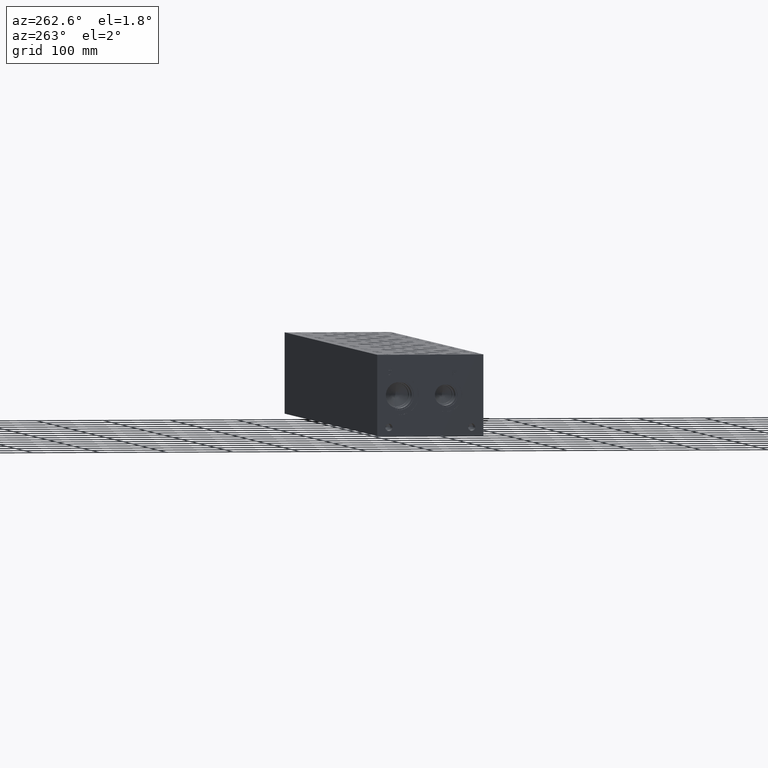
[diagram: clean part render]
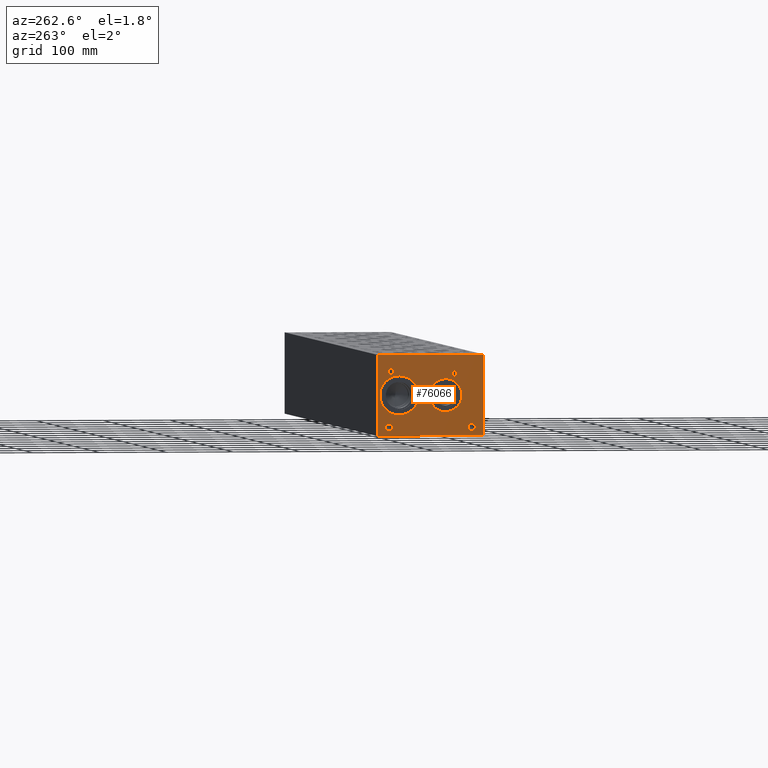
[diagram: same view with one face highlighted and labeled with its STEP entity id]
A machine part, auxiliary view. The second image highlights one B-rep face of the part: STEP entity #76066.
In plain terms, the highlighted planar face has unit normal (-1, 0, 0).
Its self-contained STEP definition (entity closure, byte-faithful):
#1441=CARTESIAN_POINT('',(0.0,141.83874586702157,97.673703319481575));
#1442=VERTEX_POINT('',#1441);
#1449=CARTESIAN_POINT('',(0.0,141.83359999999999,97.673703319481575));
#1450=VERTEX_POINT('',#1449);
#1451=CARTESIAN_POINT('',(0.0,141.83360000000002,97.673703319481589));
#1452=DIRECTION('',(0.0,1.0,0.0));
#1453=VECTOR('',#1452,0.005145867021582);
#1454=LINE('',#1451,#1453);
#1455=EDGE_CURVE('',#1450,#1442,#1454,.T.);
#1510=CARTESIAN_POINT('',(0.0,141.83359999999999,98.4249999046326));
#1511=VERTEX_POINT('',#1510);
#1518=CARTESIAN_POINT('',(0.0,141.83874586702157,98.4249999046326));
#1519=VERTEX_POINT('',#1518);
#1520=CARTESIAN_POINT('',(0.0,141.83874586702157,98.424999904632614));
#1521=DIRECTION('',(0.0,-1.0,0.0));
#1522=VECTOR('',#1521,0.005145867021582);
#1523=LINE('',#1520,#1522);
#1524=EDGE_CURVE('',#1519,#1511,#1523,.T.);
#1549=CARTESIAN_POINT('',(0.0,141.8387458670216,97.673703319481575));
#1550=DIRECTION('',(0.0,0.0,1.0));
#1551=VECTOR('',#1550,0.751296585151024);
#1552=LINE('',#1549,#1551);
#1553=EDGE_CURVE('',#1442,#1519,#1552,.T.);
#1641=CARTESIAN_POINT('',(0.0,141.83359999999999,90.646250000000009));
#1642=VERTEX_POINT('',#1641);
#1643=CARTESIAN_POINT('',(0.0,141.83359999999999,90.646250000000009));
#1644=DIRECTION('',(0.0,0.0,1.0));
#1645=VECTOR('',#1644,7.027453319481566);
#1646=LINE('',#1643,#1645);
#1647=EDGE_CURVE('',#1642,#1450,#1646,.T.);
#1664=CARTESIAN_POINT('',(0.0,134.7216,100.17125));
#1665=VERTEX_POINT('',#1664);
#1666=CARTESIAN_POINT('',(0.0,134.7216,90.646250000000009));
#1667=VERTEX_POINT('',#1666);
#1668=CARTESIAN_POINT('',(0.0,134.72160000000002,100.17125));
#1669=DIRECTION('',(0.0,0.0,-1.0));
#1670=VECTOR('',#1669,9.524999999999992);
#1671=LINE('',#1668,#1670);
#1672=EDGE_CURVE('',#1665,#1667,#1671,.T.);
#1695=CARTESIAN_POINT('',(0.0,141.83359999999999,100.17125));
#1696=VERTEX_POINT('',#1695);
#1697=CARTESIAN_POINT('',(0.0,141.83359999999999,100.17125));
#1698=DIRECTION('',(0.0,-1.0,0.0));
#1699=VECTOR('',#1698,7.111999999999995);
#1700=LINE('',#1697,#1699);
#1701=EDGE_CURVE('',#1696,#1665,#1700,.T.);
#1722=CARTESIAN_POINT('',(0.0,141.83359999999999,98.4249999046326));
#1723=DIRECTION('',(0.0,0.0,1.0));
#1724=VECTOR('',#1723,1.746250095367401);
#1725=LINE('',#1722,#1724);
#1726=EDGE_CURVE('',#1511,#1696,#1725,.T.);
#1736=CARTESIAN_POINT('',(0.0,134.7216,90.646250000000009));
#1737=DIRECTION('',(0.0,1.0,0.0));
#1738=VECTOR('',#1737,7.111999999999995);
#1739=LINE('',#1736,#1738);
#1740=EDGE_CURVE('',#1667,#1642,#1739,.T.);
#2398=CARTESIAN_POINT('',(0.0,39.7256,97.123250000000013));
#2399=VERTEX_POINT('',#2398);
#2400=CARTESIAN_POINT('',(0.0,39.7256,87.598250000000007));
#2401=VERTEX_POINT('',#2400);
#2402=CARTESIAN_POINT('',(0.0,39.725600000000007,97.123250000000013));
#2403=DIRECTION('',(0.0,0.0,-1.0));
#2404=VECTOR('',#2403,9.525000000000006);
#2405=LINE('',#2402,#2404);
#2406=EDGE_CURVE('',#2399,#2401,#2405,.T.);
#2429=CARTESIAN_POINT('',(0.0,46.837600000000002,97.123250000000013));
#2430=VERTEX_POINT('',#2429);
#2431=CARTESIAN_POINT('',(0.0,46.837600000000009,97.123250000000013));
#2432=DIRECTION('',(0.0,-1.0,0.0));
#2433=VECTOR('',#2432,7.112000000000009);
#2434=LINE('',#2431,#2433);
#2435=EDGE_CURVE('',#2430,#2399,#2434,.T.);
#2453=CARTESIAN_POINT('',(0.0,46.837600000000002,87.598250000000007));
#2454=VERTEX_POINT('',#2453);
#2455=CARTESIAN_POINT('',(0.0,46.837599999999995,87.598250000000007));
#2456=DIRECTION('',(0.0,0.0,1.0));
#2457=VECTOR('',#2456,9.525000000000006);
#2458=LINE('',#2455,#2457);
#2459=EDGE_CURVE('',#2454,#2430,#2458,.T.);
#2477=CARTESIAN_POINT('',(0.0,39.7256,87.598250000000007));
#2478=DIRECTION('',(0.0,1.0,0.0));
#2479=VECTOR('',#2478,7.112000000000002);
#2480=LINE('',#2477,#2479);
#2481=EDGE_CURVE('',#2401,#2454,#2480,.T.);
#2903=CARTESIAN_POINT('',(0.0,0.0,0.0));
#2904=VERTEX_POINT('',#2903);
#2921=CARTESIAN_POINT('',(0.0,0.0,120.65000000000001));
#2922=VERTEX_POINT('',#2921);
#2929=CARTESIAN_POINT('',(0.0,0.0,0.0));
#2930=DIRECTION('',(0.0,0.0,1.0));
#2931=VECTOR('',#2930,120.65000000000001);
#2932=LINE('',#2929,#2931);
#2933=EDGE_CURVE('',#2904,#2922,#2932,.T.);
#24013=CARTESIAN_POINT('',(0.0,158.75,120.65000000000001));
#24014=VERTEX_POINT('',#24013);
#24021=CARTESIAN_POINT('',(0.0,158.75,120.65000000000001));
#24022=DIRECTION('',(0.0,-1.0,0.0));
#24023=VECTOR('',#24022,158.75);
#24024=LINE('',#24021,#24023);
#24025=EDGE_CURVE('',#24014,#2922,#24024,.T.);
#70071=CARTESIAN_POINT('',(0.0,125.83159999999999,89.306399999999996));
#70072=VERTEX_POINT('',#70071);
#70073=CARTESIAN_POINT('',(0.0,125.83159999999999,60.325000000000003));
#70074=DIRECTION('',(1.0,0.0,0.0));
#70075=DIRECTION('',(0.0,0.0,1.0));
#70076=AXIS2_PLACEMENT_3D('',#70073,#70074,#70075);
#70077=CIRCLE('',#70076,28.981399999999997);
#70078=EDGE_CURVE('',#70072,#70072,#70077,.T.);
#70228=CARTESIAN_POINT('',(0.0,56.48960000000001,84.810600000000008));
#70229=VERTEX_POINT('',#70228);
#70230=CARTESIAN_POINT('',(0.0,56.48960000000001,60.325000000000003));
#70231=DIRECTION('',(1.0,0.0,0.0));
#70232=DIRECTION('',(0.0,0.0,1.0));
#70233=AXIS2_PLACEMENT_3D('',#70230,#70231,#70232);
#70234=CIRCLE('',#70233,24.485600000000005);
#70235=EDGE_CURVE('',#70229,#70229,#70234,.T.);
#70265=CARTESIAN_POINT('',(0.0,141.28749999999999,18.0594));
#70266=VERTEX_POINT('',#70265);
#70267=CARTESIAN_POINT('',(0.0,141.28749999999999,12.699999999999999));
#70268=DIRECTION('',(1.0,0.0,0.0));
#70269=DIRECTION('',(0.0,0.0,1.0));
#70270=AXIS2_PLACEMENT_3D('',#70267,#70268,#70269);
#70271=CIRCLE('',#70270,5.359400000000001);
#70272=EDGE_CURVE('',#70266,#70266,#70271,.T.);
#70302=CARTESIAN_POINT('',(0.0,17.462499999999999,18.0594));
#70303=VERTEX_POINT('',#70302);
#70304=CARTESIAN_POINT('',(0.0,17.462499999999999,12.699999999999999));
#70305=DIRECTION('',(1.0,0.0,0.0));
#70306=DIRECTION('',(0.0,0.0,1.0));
#70307=AXIS2_PLACEMENT_3D('',#70304,#70305,#70306);
#70308=CIRCLE('',#70307,5.359400000000001);
#70309=EDGE_CURVE('',#70303,#70303,#70308,.T.);
#76015=CARTESIAN_POINT('',(0.0,158.75,0.0));
#76016=DIRECTION('',(-1.0,0.0,0.0));
#76017=DIRECTION('',(0.0,-1.0,0.0));
#76018=AXIS2_PLACEMENT_3D('',#76015,#76016,#76017);
#76019=PLANE('',#76018);
#76020=CARTESIAN_POINT('',(0.0,158.75,0.0));
#76021=VERTEX_POINT('',#76020);
#76022=CARTESIAN_POINT('',(0.0,158.75,0.0));
#76023=DIRECTION('',(0.0,-1.0,0.0));
#76024=VECTOR('',#76023,158.75);
#76025=LINE('',#76022,#76024);
#76026=EDGE_CURVE('',#76021,#2904,#76025,.T.);
#76027=ORIENTED_EDGE('',*,*,#76026,.T.);
#76028=ORIENTED_EDGE('',*,*,#2933,.T.);
#76029=ORIENTED_EDGE('',*,*,#24025,.F.);
#76030=CARTESIAN_POINT('',(0.0,158.75,0.0));
#76031=DIRECTION('',(0.0,0.0,1.0));
#76032=VECTOR('',#76031,120.65000000000001);
#76033=LINE('',#76030,#76032);
#76034=EDGE_CURVE('',#76021,#24014,#76033,.T.);
#76035=ORIENTED_EDGE('',*,*,#76034,.F.);
#76036=EDGE_LOOP('',(#76027,#76028,#76029,#76035));
#76037=FACE_OUTER_BOUND('',#76036,.T.);
#76038=ORIENTED_EDGE('',*,*,#1524,.T.);
#76039=ORIENTED_EDGE('',*,*,#1726,.T.);
#76040=ORIENTED_EDGE('',*,*,#1701,.T.);
#76041=ORIENTED_EDGE('',*,*,#1672,.T.);
#76042=ORIENTED_EDGE('',*,*,#1740,.T.);
#76043=ORIENTED_EDGE('',*,*,#1647,.T.);
#76044=ORIENTED_EDGE('',*,*,#1455,.T.);
#76045=ORIENTED_EDGE('',*,*,#1553,.T.);
#76046=EDGE_LOOP('',(#76038,#76039,#76040,#76041,#76042,#76043,#76044,#76045));
#76047=FACE_BOUND('',#76046,.T.);
#76048=ORIENTED_EDGE('',*,*,#2406,.T.);
#76049=ORIENTED_EDGE('',*,*,#2481,.T.);
#76050=ORIENTED_EDGE('',*,*,#2459,.T.);
#76051=ORIENTED_EDGE('',*,*,#2435,.T.);
#76052=EDGE_LOOP('',(#76048,#76049,#76050,#76051));
#76053=FACE_BOUND('',#76052,.T.);
#76054=ORIENTED_EDGE('',*,*,#70078,.T.);
#76055=EDGE_LOOP('',(#76054));
#76056=FACE_BOUND('',#76055,.T.);
#76057=ORIENTED_EDGE('',*,*,#70235,.T.);
#76058=EDGE_LOOP('',(#76057));
#76059=FACE_BOUND('',#76058,.T.);
#76060=ORIENTED_EDGE('',*,*,#70272,.T.);
#76061=EDGE_LOOP('',(#76060));
#76062=FACE_BOUND('',#76061,.T.);
#76063=ORIENTED_EDGE('',*,*,#70309,.T.);
#76064=EDGE_LOOP('',(#76063));
#76065=FACE_BOUND('',#76064,.T.);
#76066=ADVANCED_FACE('',(#76037,#76047,#76053,#76056,#76059,#76062,#76065),#76019,.T.);